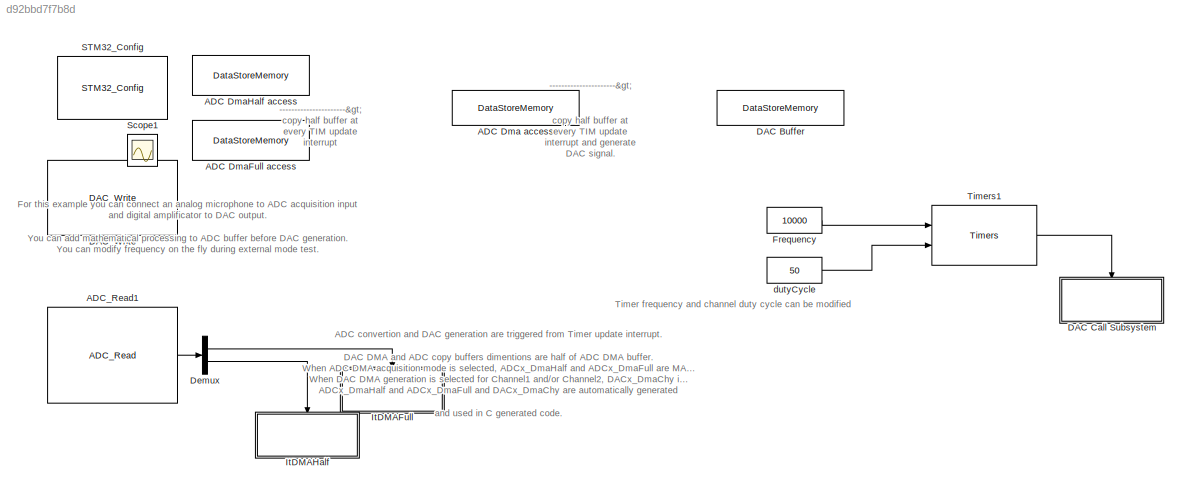
MODEL slx_d92bbd7f7b8d
KIND model
CONFIG AbsTol = auto
CONFIG EnableMultiTasking = on
CONFIG FixedStep = 0.002
CONFIG MaxStep = auto
CONFIG MinStep = auto
CONFIG RelTol = 1e-3
CONFIG SampleTimeConstraint = Unconstrained
CONFIG Solver = FixedStepDiscrete
CONFIG SolverName = FixedStepDiscrete
CONFIG StartTime = 0.0
CONFIG StopTime = inf
BLOCK [DataStoreMemory] ADC Dma access
  DataStoreName = ADC_Value
  Dimensions = 128
  OutDataTypeStr = uint16
  ReadBeforeWriteMsg = warning
  ShowAdditionalParam = off
  WriteAfterReadMsg = warning
  WriteAfterWriteMsg = warning
BLOCK [DataStoreMemory] ADC DmaFull access
  DataStoreName = ADC1_DmaFull
  Dimensions = 128
  OutDataTypeStr = uint16
  RTWStateStorageClass = ImportedExternPointer
  ReadBeforeWriteMsg = warning
  ShowAdditionalParam = off
  WriteAfterReadMsg = warning
  WriteAfterWriteMsg = warning
BLOCK [DataStoreMemory] ADC DmaHalf access
  DataStoreName = ADC1_DmaHalf
  Dimensions = 128
  OutDataTypeStr = uint16
  RTWStateStorageClass = ImportedExternPointer
  ReadBeforeWriteMsg = warning
  ShowAdditionalParam = off
  WriteAfterReadMsg = warning
  WriteAfterWriteMsg = warning
BLOCK [Reference] ADC_Read1  REF=ADC_Lib/ADC_Read
  Ports = [0, 1]
  SourceBlock = ADC_Lib/ADC_Read
  SourceProductName = Target Support Package - STM32 Adapter
  SourceType = ADC_Read
BLOCK [DataStoreMemory] DAC Buffer
  DataStoreName = DAC1_DmaCh1
  Dimensions = 128
  OutDataTypeStr = uint16
  RTWStateStorageClass = ImportedExternPointer
  ReadBeforeWriteMsg = warning
  ShowAdditionalParam = off
  WriteAfterReadMsg = warning
  WriteAfterWriteMsg = warning
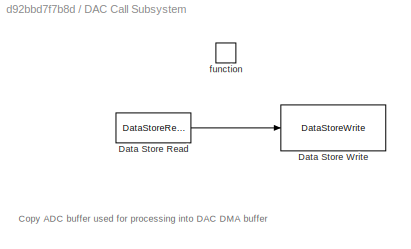
BLOCK [SubSystem] DAC Call Subsystem
  Ports = [0, 0, 0, 1]
  RequestExecContextInheritance = off
  TreatAsAtomicUnit = on
BLOCK [DataStoreRead] DAC Call Subsystem/Data Store Read
  DataStoreName = ADC_Value
  Ports = [0, 1]
BLOCK [DataStoreWrite] DAC Call Subsystem/Data Store Write
  DataStoreName = DAC1_DmaCh1
  Ports = [1]
BLOCK [TriggerPort] DAC Call Subsystem/function
  Ports = []
  StatesWhenEnabling = held
  TriggerType = function-call
  VariantControl = Variant
BLOCK [Reference] DAC_Write  REF=DAC_Lib/DAC_Write
  Ports = []
  SourceBlock = DAC_Lib/DAC_Write
  SourceProductName = Target Support Package - STM32 Adapter
  SourceType = DAC_Write
BLOCK [Demux] Demux
  DisplayOption = bar
  Outputs = 2
  Ports = [1, 2]
BLOCK [Constant] Frequency
  Value = 10000
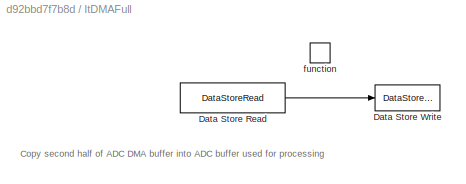
BLOCK [SubSystem] ItDMAFull
  Ports = [0, 0, 0, 1]
  RequestExecContextInheritance = off
  TreatAsAtomicUnit = on
BLOCK [DataStoreRead] ItDMAFull/Data Store Read
  DataStoreName = ADC1_DmaFull
  Ports = [0, 1]
BLOCK [DataStoreWrite] ItDMAFull/Data Store Write
  DataStoreName = ADC_Value
  Ports = [1]
BLOCK [TriggerPort] ItDMAFull/function
  Ports = []
  StatesWhenEnabling = held
  TriggerType = function-call
  VariantControl = Variant
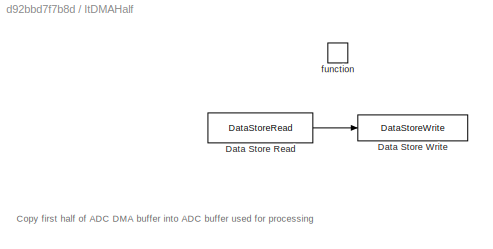
BLOCK [SubSystem] ItDMAHalf
  Ports = [0, 0, 0, 1]
  RequestExecContextInheritance = off
  TreatAsAtomicUnit = on
BLOCK [DataStoreRead] ItDMAHalf/Data Store Read
  DataStoreName = ADC1_DmaHalf
  Ports = [0, 1]
BLOCK [DataStoreWrite] ItDMAHalf/Data Store Write
  DataStoreName = ADC_Value
  Ports = [1]
BLOCK [TriggerPort] ItDMAHalf/function
  Ports = []
  StatesWhenEnabling = held
  TriggerType = function-call
  VariantControl = Variant
BLOCK [Reference] STM32_Config  REF=STM32_Config_Lib/STM32_Config
  Ports = []
  Priority = 0
  SourceBlock = STM32_Config_Lib/STM32_Config
  SourceProductName = Target Support Package - STM32 Adapter
  SourceType = STM32_Config
BLOCK [Scope] Scope1
  Floating = off
  IOType = viewer
  NumInputPorts = 1
  Ports = []
  ScopeSpecificationString = Simulink.scopes.TimeScopeBlockCfg('CurrentConfiguration', extmgr.ConfigurationSet(extmgr.Configuration('Core','General UI',true),extmgr.Configuration('Core','Source UI',true),extmgr.Configuration('Sources','WiredSimulink',true,'DataLoggingVariableName','ScopeData1'),extmgr.Configuration('Visuals','Time Domain',true,'SerializedDisplays',{struct('MinYLimReal','-1.00000','MaxYLimReal','1.00000','YLab...<+1389ch>
BLOCK [Reference] Timers1  REF=TIMERS_Lib/Timers
  Ports = [2, 1]
  SourceBlock = TIMERS_Lib/Timers
  SourceProductName = Target Support Package - STM32 Adapter
  SourceType = Timers
BLOCK [Constant] dutyCycle
  Value = 50
ANNOTATION (root): ADC convertion and DAC generation are triggered from Timer update interrupt. DAC DMA and ADC copy buffers dimentions are half of ADC DMA buffer. When ADC DMA acquisition mode is selected, ADCx_DmaHalf and ADCx_DmaFull are MANDATORY! (x is ADC selected number) When DAC DMA generation is selected for Channel1 and/or Channel2, DACx_DmaChy is MANDATORY! (x is DAC number and y is channel number) ADCx_D...<+185ch>
ANNOTATION (root): Timer frequency and channel duty cycle can be modified
ANNOTATION (root): ----------------------> copy half buffer at every TIM update interrupt and generate DAC signal.
ANNOTATION (root): ----------------------> copy half buffer at every TIM update interrupt
ANNOTATION (root): For this example you can connect an analog microphone to ADC acquisition input and digital amplificator to DAC output. You can add mathematical processing to ADC buffer before DAC generation. You can modify frequency on the fly during external mode test.
ANNOTATION DAC Call Subsystem: Copy ADC buffer used for processing into DAC DMA buffer
ANNOTATION ItDMAFull: Copy second half of ADC DMA buffer into ADC buffer used for processing
ANNOTATION ItDMAHalf: Copy first half of ADC DMA buffer into ADC buffer used for processing
LINE ADC_Read1:1 -> Demux:1
LINE DAC Call Subsystem/Data Store Read:1 -> DAC Call Subsystem/Data Store Write:1
LINE Demux:1 -> ItDMAFull:trigger
LINE Demux:2 -> ItDMAHalf:trigger
LINE Frequency:1 -> Timers1:1
LINE ItDMAFull/Data Store Read:1 -> ItDMAFull/Data Store Write:1
LINE ItDMAHalf/Data Store Read:1 -> ItDMAHalf/Data Store Write:1
LINE Timers1:1 -> DAC Call Subsystem:trigger
LINE dutyCycle:1 -> Timers1:2
